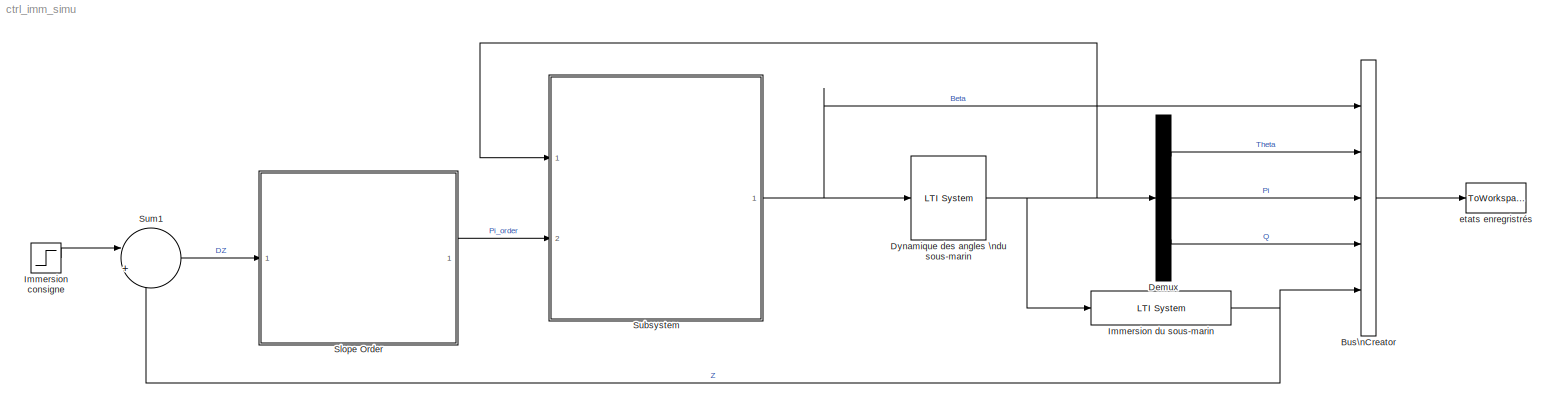
MODEL ctrl_imm_simu
KIND model
BLOCK [BusCreator] Bus\nCreator
  DisplayOption = bar
  InheritFromInputs = on
  Inputs = 5
  Ports = [5, 1]
  SID = 19
BLOCK [Demux] Demux
  DisplayOption = bar
  Outputs = 3
  Ports = [1, 3]
  SID = 20
BLOCK [Reference] Dynamique des angles \ndu sous-marin  REF=cstblocks/LTI System
  IC = []
  Ports = [1, 1]
  SID = 1
  SourceBlock = cstblocks/LTI System
  SourceProductBaseCode = CT
  SourceProductName = Control System Toolbox
  SourceType = LTI Block
  sys = sys.sm
BLOCK [Step] Immersion consigne
  After = ctrl.ZOrder
  SID = 23
  SampleTime = 0.1
  Time = 0.1
BLOCK [Reference] Immersion du sous-marin  REF=cstblocks/LTI System
  IC = []
  Ports = [1, 1]
  SID = 7
  SourceBlock = cstblocks/LTI System
  SourceProductBaseCode = CT
  SourceProductName = Control System Toolbox
  SourceType = LTI Block
  sys = sys.zthpiq
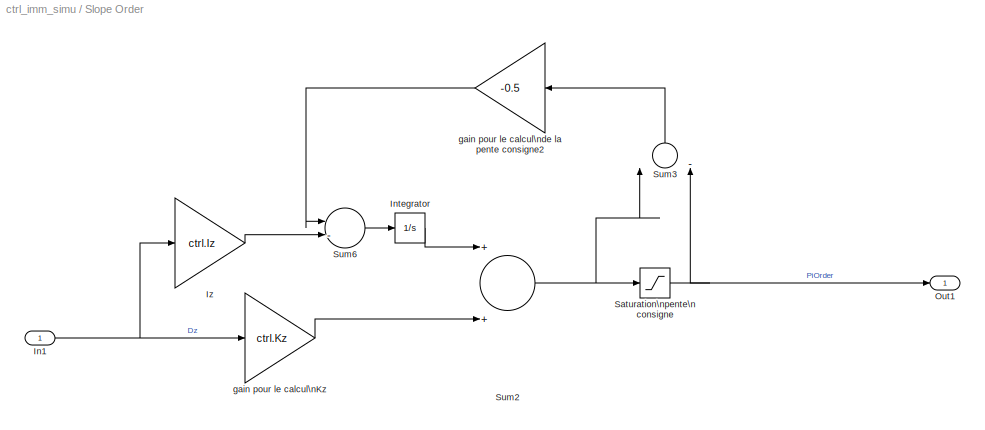
BLOCK [SubSystem] Slope Order
  Ports = [1, 1]
  RequestExecContextInheritance = off
  SID = 55
BLOCK [Inport] Slope Order/In1
  IconDisplay = Port number
  SID = 56
BLOCK [Integrator] Slope Order/Integrator
  Ports = [1, 1]
  SID = 42
BLOCK [Gain] Slope Order/Iz
  Gain = ctrl.Iz
  OutDataTypeStr = Inherit: Inherit via internal rule
  ParamDataTypeStr = Inherit: Inherit via internal rule
  SID = 41
  SaturateOnIntegerOverflow = off
BLOCK [Outport] Slope Order/Out1
  IconDisplay = Port number
  SID = 57
BLOCK [Saturate] Slope Order/Saturation\npente\nconsigne
  InputPortMap = u0
  LowerLimit = -ctrl.sat_Pi_max
  Ports = [1, 1]
  SID = 13
  UpperLimit = ctrl.sat_Pi_max
BLOCK [Sum] Slope Order/Sum2
  InputSameDT = off
  OutDataTypeStr = Inherit: Inherit via internal rule
  Ports = [2, 1]
  SID = 43
  SaturateOnIntegerOverflow = off
BLOCK [Sum] Slope Order/Sum3
  InputSameDT = off
  Inputs = |-+
  OutDataTypeStr = Inherit: Inherit via internal rule
  Ports = [2, 1]
  SID = 44
  SaturateOnIntegerOverflow = off
BLOCK [Sum] Slope Order/Sum6
  InputSameDT = off
  Inputs = |-+
  OutDataTypeStr = Inherit: Inherit via internal rule
  Ports = [2, 1]
  SID = 54
  SaturateOnIntegerOverflow = off
BLOCK [Gain] Slope Order/gain pour le calcul\nKz
  Gain = ctrl.Kz
  OutDataTypeStr = Inherit: Inherit via internal rule
  ParamDataTypeStr = Inherit: Inherit via internal rule
  SID = 12
  SaturateOnIntegerOverflow = off
BLOCK [Gain] Slope Order/gain pour le calcul\nde la pente consigne2
  Gain = -0.5
  OutDataTypeStr = Inherit: Inherit via internal rule
  ParamDataTypeStr = Inherit: Inherit via internal rule
  SID = 46
  SaturateOnIntegerOverflow = off
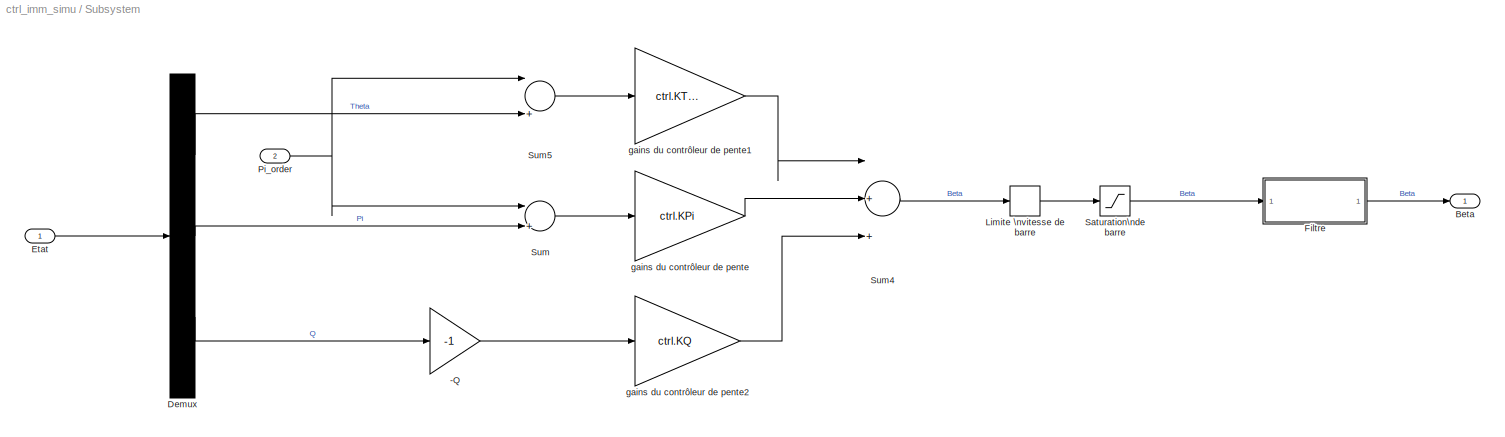
BLOCK [SubSystem] Subsystem
  Ports = [2, 1]
  RequestExecContextInheritance = off
  SID = 58
BLOCK [Gain] Subsystem/-Q
  Gain = -1
  OutDataTypeStr = Inherit: Inherit via internal rule
  ParamDataTypeStr = Inherit: Inherit via internal rule
  SID = 50
  SaturateOnIntegerOverflow = off
BLOCK [Outport] Subsystem/Beta
  IconDisplay = Port number
  SID = 63
BLOCK [Demux] Subsystem/Demux
  DisplayOption = bar
  Outputs = 3
  Ports = [1, 3]
  SID = 64
BLOCK [Inport] Subsystem/Etat
  IconDisplay = Port number
  SID = 59
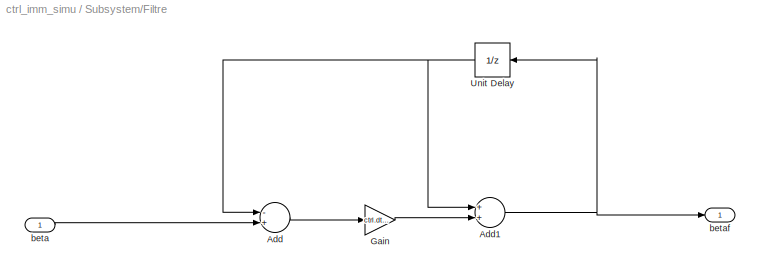
BLOCK [SubSystem] Subsystem/Filtre
  Ports = [1, 1]
  RequestExecContextInheritance = off
  SID = 66
BLOCK [Sum] Subsystem/Filtre/Add
  InputSameDT = off
  Inputs = -+
  OutDataTypeStr = Inherit: Inherit via internal rule
  Ports = [2, 1]
  SID = 71
  SaturateOnIntegerOverflow = off
BLOCK [Sum] Subsystem/Filtre/Add1
  InputSameDT = off
  OutDataTypeStr = Inherit: Inherit via internal rule
  Ports = [2, 1]
  SID = 76
  SaturateOnIntegerOverflow = off
BLOCK [Gain] Subsystem/Filtre/Gain
  Gain = ctrl.dt*ctrl.omega
  OutDataTypeStr = Inherit: Inherit via internal rule
  ParamDataTypeStr = Inherit: Inherit via internal rule
  SID = 75
  SaturateOnIntegerOverflow = off
BLOCK [UnitDelay] Subsystem/Filtre/Unit Delay
  InputProcessing = Elements as channels (sample based)
  SID = 74
  SampleTime = ctrl.dt
BLOCK [Inport] Subsystem/Filtre/beta
  IconDisplay = Port number
  SID = 67
BLOCK [Outport] Subsystem/Filtre/betaf
  IconDisplay = Port number
  SID = 68
BLOCK [RateLimiter] Subsystem/Limite \nvitesse de barre
  FallingSlewLimit = -ctrl.sat_Beta_d
  RisingSlewLimit = ctrl.sat_Beta_d
  SID = 32
  SampleTimeMode = inherited
BLOCK [Inport] Subsystem/Pi_order
  IconDisplay = Port number
  Port = 2
  SID = 62
BLOCK [Saturate] Subsystem/Saturation\nde barre
  InputPortMap = u0
  LowerLimit = -ctrl.sat_Beta
  Ports = [1, 1]
  SID = 33
  SampleTime = 0.1
  UpperLimit = ctrl.sat_Beta
BLOCK [Sum] Subsystem/Sum
  InputSameDT = off
  Inputs = |+-
  OutDataTypeStr = Inherit: Inherit via internal rule
  Ports = [2, 1]
  SID = 3
  SaturateOnIntegerOverflow = off
BLOCK [Sum] Subsystem/Sum4
  InputSameDT = off
  Inputs = |+++
  OutDataTypeStr = Inherit: Inherit via internal rule
  Ports = [3, 1]
  SID = 49
  SaturateOnIntegerOverflow = off
BLOCK [Sum] Subsystem/Sum5
  InputSameDT = off
  Inputs = |+-
  OutDataTypeStr = Inherit: Inherit via internal rule
  Ports = [2, 1]
  SID = 53
  SaturateOnIntegerOverflow = off
BLOCK [Gain] Subsystem/gains du contrôleur de pente
  Gain = ctrl.KPi
  Multiplication = Matrix(K*u)
  OutDataTypeStr = Inherit: Inherit via internal rule
  ParamDataTypeStr = Inherit: Inherit via internal rule
  SID = 2
  SaturateOnIntegerOverflow = off
BLOCK [Gain] Subsystem/gains du contrôleur de pente1
  Gain = ctrl.KTheta
  Multiplication = Matrix(K*u)
  OutDataTypeStr = Inherit: Inherit via internal rule
  ParamDataTypeStr = Inherit: Inherit via internal rule
  SID = 47
  SaturateOnIntegerOverflow = off
BLOCK [Gain] Subsystem/gains du contrôleur de pente2
  Gain = ctrl.KQ
  Multiplication = Matrix(K*u)
  OutDataTypeStr = Inherit: Inherit via internal rule
  ParamDataTypeStr = Inherit: Inherit via internal rule
  SID = 65
  SaturateOnIntegerOverflow = off
BLOCK [Sum] Sum1
  IconShape = round
  InputSameDT = off
  Inputs = |+-
  OutDataTypeStr = Inherit: Inherit via internal rule
  Ports = [2, 1]
  SID = 11
  SaturateOnIntegerOverflow = off
BLOCK [ToWorkspace] etats enregristrés
  MaxDataPoints = inf
  Ports = [1]
  SID = 28
  SampleTime = 0.1
  SaveFormat = Timeseries
  VariableName = output
LINE Bus\nCreator:1 -> etats enregristrés:1
LINE Demux:1 -> Bus\nCreator:2
LINE Demux:2 -> Bus\nCreator:3
LINE Demux:3 -> Bus\nCreator:4
NET Dynamique des angles \ndu sous-marin:1 -> Demux:1, Immersion du sous-marin:1, Subsystem:1
LINE Immersion consigne:1 -> Sum1:1
NET Immersion du sous-marin:1 -> Bus\nCreator:5, Sum1:2
NET Slope Order/In1:1 -> Slope Order/Iz:1, Slope Order/gain pour le calcul\nKz:1
LINE Slope Order/Integrator:1 -> Slope Order/Sum2:1
LINE Slope Order/Iz:1 -> Slope Order/Sum6:2
NET Slope Order/Saturation\npente\nconsigne:1 -> Slope Order/Out1:1, Slope Order/Sum3:2
NET Slope Order/Sum2:1 -> Slope Order/Saturation\npente\nconsigne:1, Slope Order/Sum3:1
LINE Slope Order/Sum3:1 -> Slope Order/gain pour le calcul\nde la pente consigne2:1
LINE Slope Order/Sum6:1 -> Slope Order/Integrator:1
LINE Slope Order/gain pour le calcul\nKz:1 -> Slope Order/Sum2:2
LINE Slope Order/gain pour le calcul\nde la pente consigne2:1 -> Slope Order/Sum6:1
LINE Slope Order:1 -> Subsystem:2
LINE Subsystem/-Q:1 -> Subsystem/gains du contrôleur de pente2:1
LINE Subsystem/Demux:1 -> Subsystem/Sum5:2
LINE Subsystem/Demux:2 -> Subsystem/Sum:2
LINE Subsystem/Demux:3 -> Subsystem/-Q:1
LINE Subsystem/Etat:1 -> Subsystem/Demux:1
NET Subsystem/Filtre/Add1:1 -> Subsystem/Filtre/Unit Delay:1, Subsystem/Filtre/betaf:1
LINE Subsystem/Filtre/Add:1 -> Subsystem/Filtre/Gain:1
LINE Subsystem/Filtre/Gain:1 -> Subsystem/Filtre/Add1:2
NET Subsystem/Filtre/Unit Delay:1 -> Subsystem/Filtre/Add1:1, Subsystem/Filtre/Add:1
LINE Subsystem/Filtre/beta:1 -> Subsystem/Filtre/Add:2
LINE Subsystem/Filtre:1 -> Subsystem/Beta:1
LINE Subsystem/Limite \nvitesse de barre:1 -> Subsystem/Saturation\nde barre:1
NET Subsystem/Pi_order:1 -> Subsystem/Sum5:1, Subsystem/Sum:1
LINE Subsystem/Saturation\nde barre:1 -> Subsystem/Filtre:1
LINE Subsystem/Sum4:1 -> Subsystem/Limite \nvitesse de barre:1
LINE Subsystem/Sum5:1 -> Subsystem/gains du contrôleur de pente1:1
LINE Subsystem/Sum:1 -> Subsystem/gains du contrôleur de pente:1
LINE Subsystem/gains du contrôleur de pente1:1 -> Subsystem/Sum4:1
LINE Subsystem/gains du contrôleur de pente2:1 -> Subsystem/Sum4:3
LINE Subsystem/gains du contrôleur de pente:1 -> Subsystem/Sum4:2
NET Subsystem:1 -> Bus\nCreator:1, Dynamique des angles \ndu sous-marin:1
LINE Sum1:1 -> Slope Order:1
note: NET lines group one-source signal fan-out (src -> all destinations, sorted); 1:1 wires keep LINE
